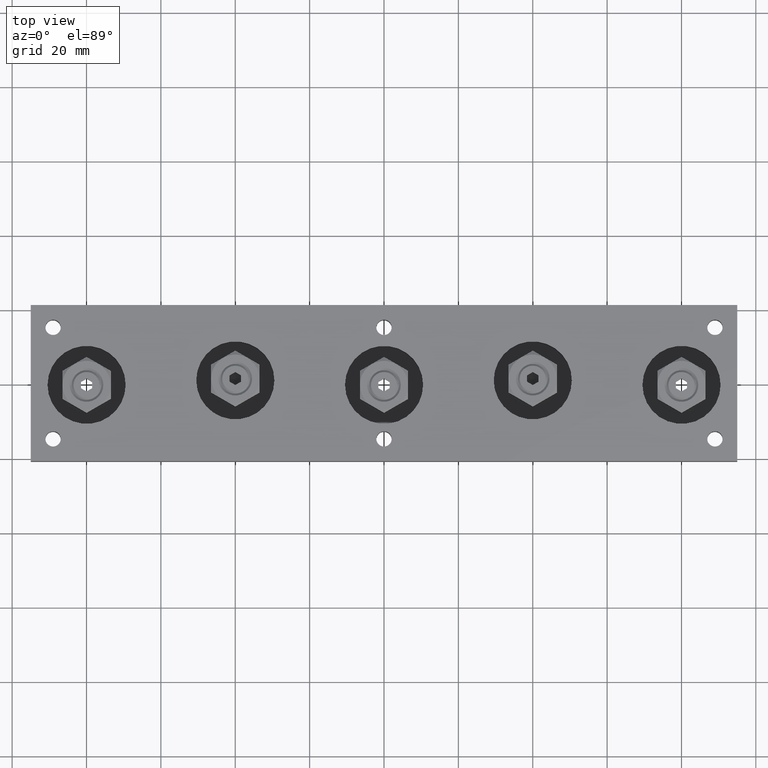
[diagram: clean part render]
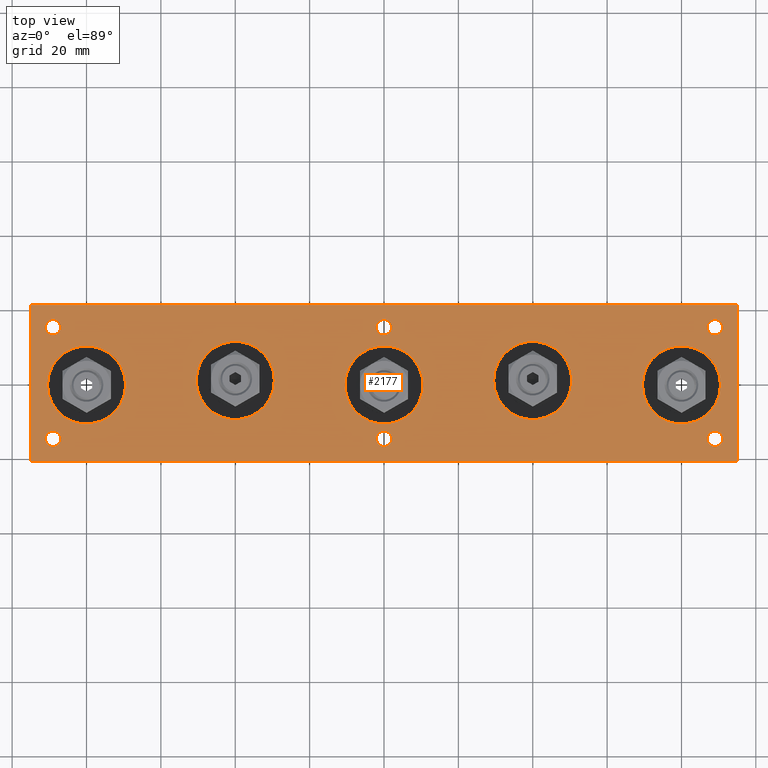
[diagram: same view with one face highlighted and labeled with its STEP entity id]
A machine part, top view. The second image highlights one B-rep face of the part: STEP entity #2177.
In plain terms, the highlighted planar face has unit normal (0, 0, 1).
Its self-contained STEP definition (entity closure, byte-faithful):
#182=FACE_BOUND('',#452,.T.);
#183=FACE_BOUND('',#453,.T.);
#184=FACE_BOUND('',#454,.T.);
#185=FACE_BOUND('',#455,.T.);
#186=FACE_BOUND('',#456,.T.);
#187=FACE_BOUND('',#457,.T.);
#188=FACE_BOUND('',#458,.T.);
#189=FACE_BOUND('',#459,.T.);
#190=FACE_BOUND('',#460,.T.);
#191=FACE_BOUND('',#461,.T.);
#192=FACE_BOUND('',#462,.T.);
#233=PLANE('',#2560);
#308=FACE_OUTER_BOUND('',#451,.T.);
#451=EDGE_LOOP('',(#1596,#1597,#1598,#1599));
#452=EDGE_LOOP('',(#1600));
#453=EDGE_LOOP('',(#1601));
#454=EDGE_LOOP('',(#1602));
#455=EDGE_LOOP('',(#1603));
#456=EDGE_LOOP('',(#1604));
#457=EDGE_LOOP('',(#1605));
#458=EDGE_LOOP('',(#1606));
#459=EDGE_LOOP('',(#1607));
#460=EDGE_LOOP('',(#1608));
#461=EDGE_LOOP('',(#1609));
#462=EDGE_LOOP('',(#1610));
#622=LINE('',#3642,#760);
#626=LINE('',#3650,#764);
#629=LINE('',#3656,#767);
#632=LINE('',#3661,#770);
#760=VECTOR('',#2928,10.);
#764=VECTOR('',#2934,10.);
#767=VECTOR('',#2939,10.);
#770=VECTOR('',#2944,10.);
#882=CIRCLE('',#2504,2.067);
#884=CIRCLE('',#2507,2.067);
#886=CIRCLE('',#2510,2.067);
#888=CIRCLE('',#2513,2.067);
#890=CIRCLE('',#2516,2.067);
#892=CIRCLE('',#2519,2.067);
#896=CIRCLE('',#2525,10.5);
#900=CIRCLE('',#2532,10.5);
#904=CIRCLE('',#2539,10.5);
#908=CIRCLE('',#2546,10.5);
#912=CIRCLE('',#2553,10.5);
#1017=VERTEX_POINT('',#3539);
#1019=VERTEX_POINT('',#3545);
#1021=VERTEX_POINT('',#3551);
#1023=VERTEX_POINT('',#3557);
#1025=VERTEX_POINT('',#3563);
#1027=VERTEX_POINT('',#3569);
#1031=VERTEX_POINT('',#3580);
#1035=VERTEX_POINT('',#3593);
#1039=VERTEX_POINT('',#3606);
#1043=VERTEX_POINT('',#3619);
#1047=VERTEX_POINT('',#3632);
#1049=VERTEX_POINT('',#3640);
#1050=VERTEX_POINT('',#3641);
#1053=VERTEX_POINT('',#3649);
#1055=VERTEX_POINT('',#3655);
#1209=EDGE_CURVE('',#1017,#1017,#882,.T.);
#1212=EDGE_CURVE('',#1019,#1019,#884,.T.);
#1215=EDGE_CURVE('',#1021,#1021,#886,.T.);
#1218=EDGE_CURVE('',#1023,#1023,#888,.T.);
#1221=EDGE_CURVE('',#1025,#1025,#890,.T.);
#1224=EDGE_CURVE('',#1027,#1027,#892,.T.);
#1229=EDGE_CURVE('',#1031,#1031,#896,.T.);
#1235=EDGE_CURVE('',#1035,#1035,#900,.T.);
#1241=EDGE_CURVE('',#1039,#1039,#904,.T.);
#1247=EDGE_CURVE('',#1043,#1043,#908,.T.);
#1253=EDGE_CURVE('',#1047,#1047,#912,.T.);
#1257=EDGE_CURVE('',#1049,#1050,#622,.T.);
#1261=EDGE_CURVE('',#1050,#1053,#626,.T.);
#1264=EDGE_CURVE('',#1053,#1055,#629,.T.);
#1267=EDGE_CURVE('',#1055,#1049,#632,.T.);
#1596=ORIENTED_EDGE('',*,*,#1257,.F.);
#1597=ORIENTED_EDGE('',*,*,#1267,.F.);
#1598=ORIENTED_EDGE('',*,*,#1264,.F.);
#1599=ORIENTED_EDGE('',*,*,#1261,.F.);
#1600=ORIENTED_EDGE('',*,*,#1209,.T.);
#1601=ORIENTED_EDGE('',*,*,#1212,.T.);
#1602=ORIENTED_EDGE('',*,*,#1215,.T.);
#1603=ORIENTED_EDGE('',*,*,#1218,.T.);
#1604=ORIENTED_EDGE('',*,*,#1221,.T.);
#1605=ORIENTED_EDGE('',*,*,#1224,.T.);
#1606=ORIENTED_EDGE('',*,*,#1229,.T.);
#1607=ORIENTED_EDGE('',*,*,#1235,.T.);
#1608=ORIENTED_EDGE('',*,*,#1241,.T.);
#1609=ORIENTED_EDGE('',*,*,#1247,.T.);
#1610=ORIENTED_EDGE('',*,*,#1253,.T.);
#2177=ADVANCED_FACE('',(#308,#182,#183,#184,#185,#186,#187,#188,#189,#190,
#191,#192),#233,.T.);
#2504=AXIS2_PLACEMENT_3D('',#3540,#2806,#2807);
#2507=AXIS2_PLACEMENT_3D('',#3546,#2813,#2814);
#2510=AXIS2_PLACEMENT_3D('',#3552,#2820,#2821);
#2513=AXIS2_PLACEMENT_3D('',#3558,#2827,#2828);
#2516=AXIS2_PLACEMENT_3D('',#3564,#2834,#2835);
#2519=AXIS2_PLACEMENT_3D('',#3570,#2841,#2842);
#2525=AXIS2_PLACEMENT_3D('',#3581,#2854,#2855);
#2532=AXIS2_PLACEMENT_3D('',#3594,#2870,#2871);
#2539=AXIS2_PLACEMENT_3D('',#3607,#2886,#2887);
#2546=AXIS2_PLACEMENT_3D('',#3620,#2902,#2903);
#2553=AXIS2_PLACEMENT_3D('',#3633,#2918,#2919);
#2560=AXIS2_PLACEMENT_3D('',#3663,#2946,#2947);
#2806=DIRECTION('center_axis',(0.,0.,-1.));
#2807=DIRECTION('ref_axis',(1.,0.,0.));
#2813=DIRECTION('center_axis',(0.,0.,-1.));
#2814=DIRECTION('ref_axis',(1.,0.,0.));
#2820=DIRECTION('center_axis',(0.,0.,-1.));
#2821=DIRECTION('ref_axis',(1.,0.,0.));
#2827=DIRECTION('center_axis',(0.,0.,-1.));
#2828=DIRECTION('ref_axis',(1.,0.,0.));
#2834=DIRECTION('center_axis',(0.,0.,-1.));
#2835=DIRECTION('ref_axis',(1.,0.,0.));
#2841=DIRECTION('center_axis',(0.,0.,-1.));
#2842=DIRECTION('ref_axis',(1.,0.,0.));
#2854=DIRECTION('center_axis',(0.,0.,-1.));
#2855=DIRECTION('ref_axis',(1.,0.,0.));
#2870=DIRECTION('center_axis',(0.,0.,-1.));
#2871=DIRECTION('ref_axis',(1.,0.,0.));
#2886=DIRECTION('center_axis',(0.,0.,-1.));
#2887=DIRECTION('ref_axis',(1.,0.,0.));
#2902=DIRECTION('center_axis',(0.,0.,-1.));
#2903=DIRECTION('ref_axis',(1.,0.,0.));
#2918=DIRECTION('center_axis',(0.,0.,-1.));
#2919=DIRECTION('ref_axis',(1.,0.,0.));
#2928=DIRECTION('',(0.,-1.,0.));
#2934=DIRECTION('',(-1.,0.,0.));
#2939=DIRECTION('',(0.,1.,0.));
#2944=DIRECTION('',(1.,0.,0.));
#2946=DIRECTION('center_axis',(0.,0.,1.));
#2947=DIRECTION('ref_axis',(1.,0.,0.));
#3539=CARTESIAN_POINT('',(-2.067,15.,14.));
#3540=CARTESIAN_POINT('Origin',(0.,15.,14.));
#3545=CARTESIAN_POINT('',(-2.067,-15.,14.));
#3546=CARTESIAN_POINT('Origin',(0.,-15.,14.));
#3551=CARTESIAN_POINT('',(86.933,15.,14.));
#3552=CARTESIAN_POINT('Origin',(89.,15.,14.));
#3557=CARTESIAN_POINT('',(86.933,-15.,14.));
#3558=CARTESIAN_POINT('Origin',(89.,-15.,14.));
#3563=CARTESIAN_POINT('',(-91.067,-15.,14.));
#3564=CARTESIAN_POINT('Origin',(-89.,-15.,14.));
#3569=CARTESIAN_POINT('',(-91.067,15.,14.));
#3570=CARTESIAN_POINT('Origin',(-89.,15.,14.));
#3580=CARTESIAN_POINT('',(-90.5,-0.5,14.));
#3581=CARTESIAN_POINT('Origin',(-80.,-0.499999999999998,14.));
#3593=CARTESIAN_POINT('',(69.5,-0.5,14.));
#3594=CARTESIAN_POINT('Origin',(80.,-0.499999999999998,14.));
#3606=CARTESIAN_POINT('',(-10.5,-0.5,14.));
#3607=CARTESIAN_POINT('Origin',(0.,-0.499999999999998,14.));
#3619=CARTESIAN_POINT('',(29.5,0.699999999999997,14.));
#3620=CARTESIAN_POINT('Origin',(40.,0.699999999999998,14.));
#3632=CARTESIAN_POINT('',(-50.5,0.699999999999997,14.));
#3633=CARTESIAN_POINT('Origin',(-40.,0.699999999999998,14.));
#3640=CARTESIAN_POINT('',(95.,21.,14.));
#3641=CARTESIAN_POINT('',(95.,-21.,14.));
#3642=CARTESIAN_POINT('',(95.,21.,14.));
#3649=CARTESIAN_POINT('',(-95.,-21.,14.));
#3650=CARTESIAN_POINT('',(95.,-21.,14.));
#3655=CARTESIAN_POINT('',(-95.,21.,14.));
#3656=CARTESIAN_POINT('',(-95.,-21.,14.));
#3661=CARTESIAN_POINT('',(-95.,21.,14.));
#3663=CARTESIAN_POINT('Origin',(0.,-1.09630173278033E-16,14.));